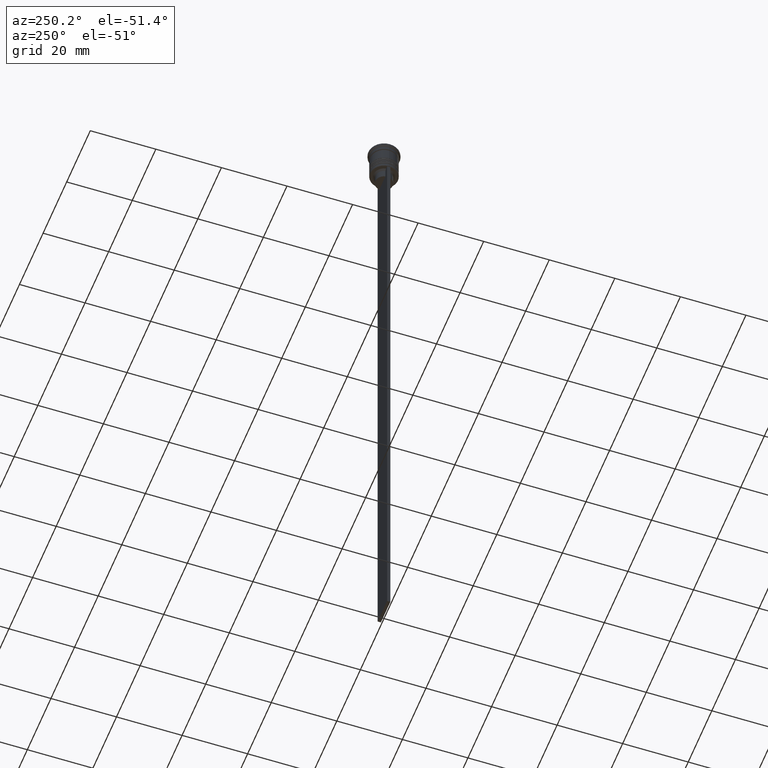
[diagram: clean part render]
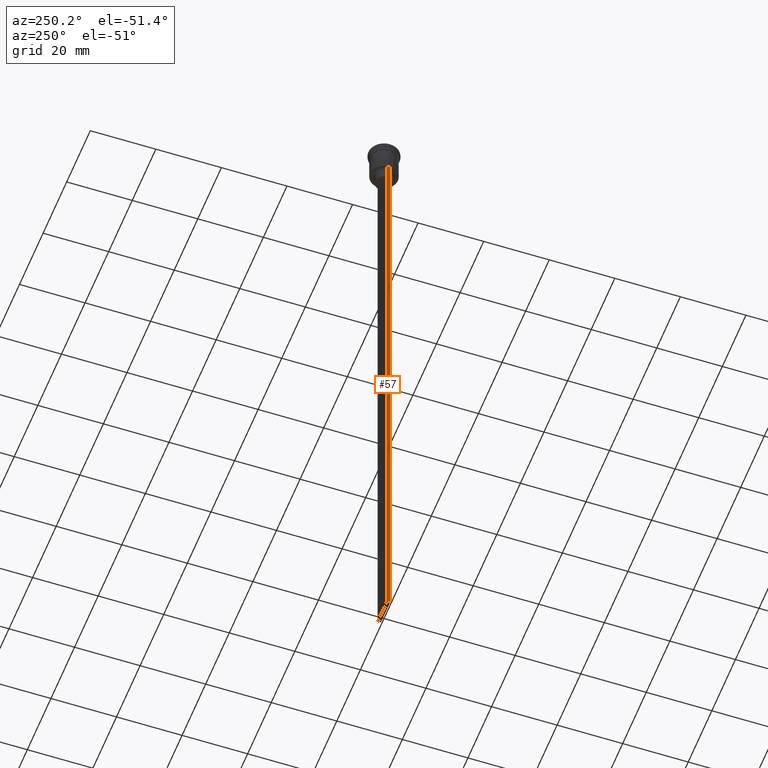
[diagram: same view with one face highlighted and labeled with its STEP entity id]
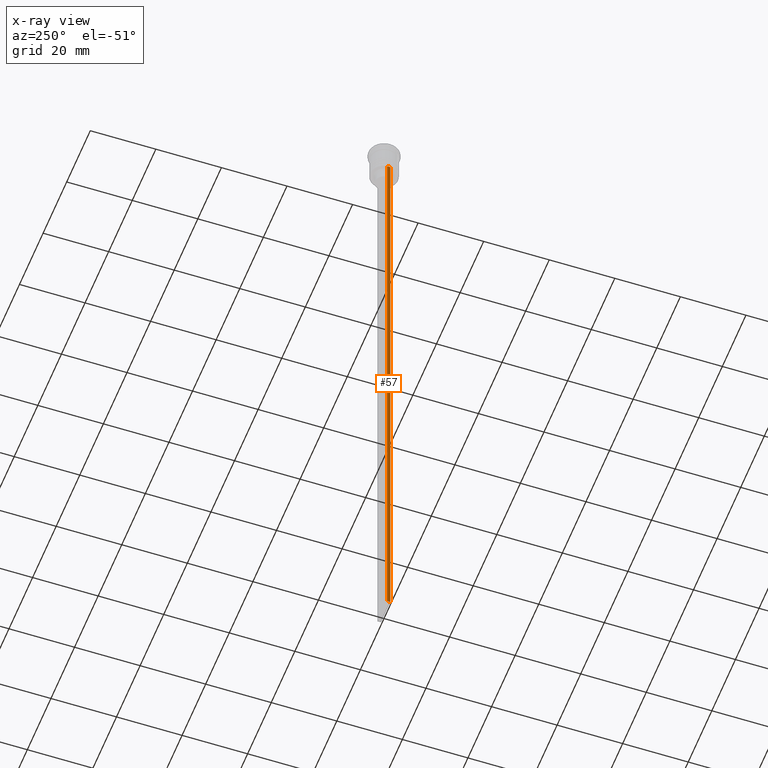
[diagram: x-ray of the same camera — body ghosted, the highlighted face saturated]
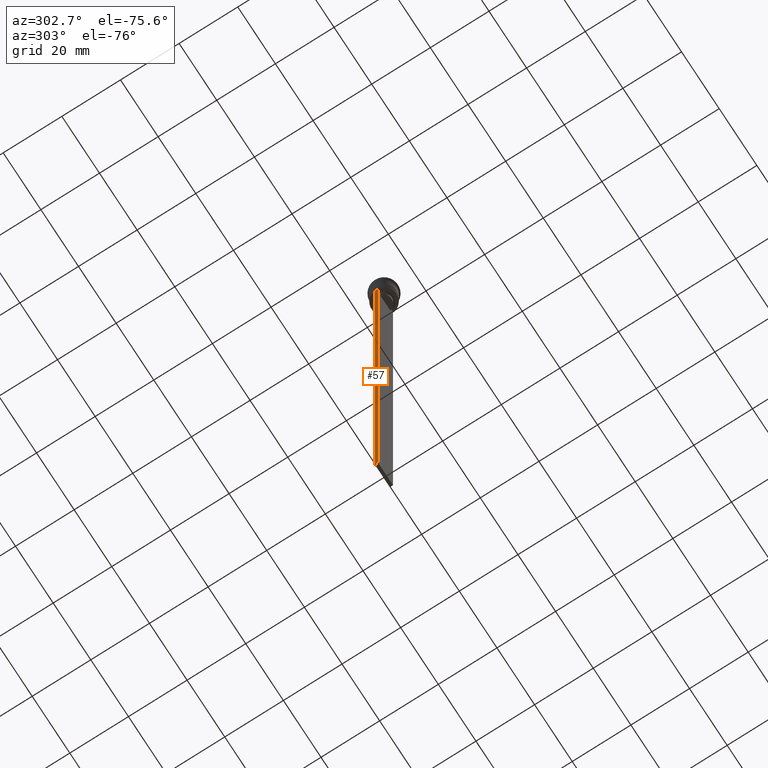
[diagram: same view with one face highlighted and labeled with its STEP entity id]
A machine part, auxiliary view. The second image highlights one B-rep face of the part: STEP entity #57.
The next image is the same camera in x-ray: the body ghosted, the highlighted face saturated — about 0% of this face is hidden behind the body in this view.
A second angle (auxiliary view) of the same face is appended — the face is thin or edge-on in the first view.
In plain terms, the highlighted planar face has unit normal (-1, 0, 0).
Its self-contained STEP definition (entity closure, byte-faithful):
#57 = ADVANCED_FACE ( 'NONE', ( #1608 ), #1058, .T. ) ;
#113 = ORIENTED_EDGE ( 'NONE', *, *, #1054, .F. ) ;
#206 = CARTESIAN_POINT ( 'NONE',  ( -3.999999999999994671, -0.5000000000000004441, -9.500000000000000000 ) ) ;
#285 = DIRECTION ( 'NONE',  ( 0.000000000000000000, -1.000000000000000000, 0.000000000000000000 ) ) ;
#302 = EDGE_CURVE ( 'NONE', #1251, #434, #2068, .T. ) ;
#411 = VECTOR ( 'NONE', #1141, 1000.000000000000000 ) ;
#418 = CARTESIAN_POINT ( 'NONE',  ( -3.999999999999994671, -0.5000000000000004441, -209.5000000000000284 ) ) ;
#434 = VERTEX_POINT ( 'NONE', #1221 ) ;
#464 = CARTESIAN_POINT ( 'NONE',  ( -3.999999999999994671, -0.5000000000000004441, -209.5000000000000284 ) ) ;
#640 = LINE ( 'NONE', #1591, #808 ) ;
#718 = EDGE_CURVE ( 'NONE', #2297, #1725, #640, .T. ) ;
#738 = VECTOR ( 'NONE', #1308, 1000.000000000000000 ) ;
#808 = VECTOR ( 'NONE', #285, 1000.000000000000000 ) ;
#833 = DIRECTION ( 'NONE',  ( -1.000000000000000000, 0.000000000000000000, 0.000000000000000000 ) ) ;
#856 = DIRECTION ( 'NONE',  ( 0.000000000000000000, 0.000000000000000000, 1.000000000000000000 ) ) ;
#943 = EDGE_CURVE ( 'NONE', #2297, #434, #2196, .T. ) ;
#1054 = EDGE_CURVE ( 'NONE', #1725, #1251, #1484, .T. ) ;
#1058 = PLANE ( 'NONE',  #1877 ) ;
#1090 = CARTESIAN_POINT ( 'NONE',  ( -3.999999999999994671, 0.4999999999999995559, -1.437742251701450202 ) ) ;
#1116 = ORIENTED_EDGE ( 'NONE', *, *, #943, .T. ) ;
#1131 = EDGE_LOOP ( 'NONE', ( #1870, #1116, #1425, #113 ) ) ;
#1141 = DIRECTION ( 'NONE',  ( 0.000000000000000000, 1.000000000000000000, 0.000000000000000000 ) ) ;
#1221 = CARTESIAN_POINT ( 'NONE',  ( -3.999999999999994671, 0.4999999999999995559, -209.5000000000000284 ) ) ;
#1251 = VERTEX_POINT ( 'NONE', #464 ) ;
#1308 = DIRECTION ( 'NONE',  ( 0.000000000000000000, 0.000000000000000000, -1.000000000000000000 ) ) ;
#1425 = ORIENTED_EDGE ( 'NONE', *, *, #302, .F. ) ;
#1484 = LINE ( 'NONE', #2230, #738 ) ;
#1591 = CARTESIAN_POINT ( 'NONE',  ( -3.999999999999994671, -0.5000000000000004441, -9.500000000000000000 ) ) ;
#1608 = FACE_OUTER_BOUND ( 'NONE', #1131, .T. ) ;
#1707 = CARTESIAN_POINT ( 'NONE',  ( -3.999999999999994671, 0.4999999999999997780, -9.500000000000000000 ) ) ;
#1725 = VERTEX_POINT ( 'NONE', #206 ) ;
#1818 = DIRECTION ( 'NONE',  ( 0.000000000000000000, 0.000000000000000000, -1.000000000000000000 ) ) ;
#1870 = ORIENTED_EDGE ( 'NONE', *, *, #718, .F. ) ;
#1877 = AXIS2_PLACEMENT_3D ( 'NONE', #2167, #833, #856 ) ;
#2068 = LINE ( 'NONE', #418, #411 ) ;
#2167 = CARTESIAN_POINT ( 'NONE',  ( -3.999999999999994671, -0.5000000000000004441, -1.437742251701450202 ) ) ;
#2196 = LINE ( 'NONE', #1090, #2271 ) ;
#2230 = CARTESIAN_POINT ( 'NONE',  ( -3.999999999999994671, -0.5000000000000004441, -1.437742251701450202 ) ) ;
#2271 = VECTOR ( 'NONE', #1818, 1000.000000000000000 ) ;
#2297 = VERTEX_POINT ( 'NONE', #1707 ) ;